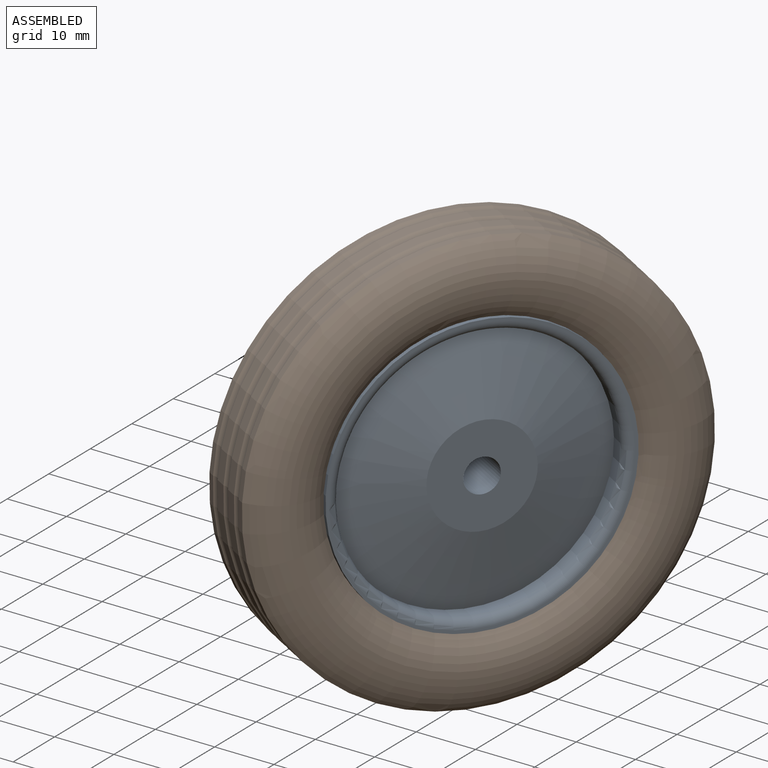
[diagram: assembled view]
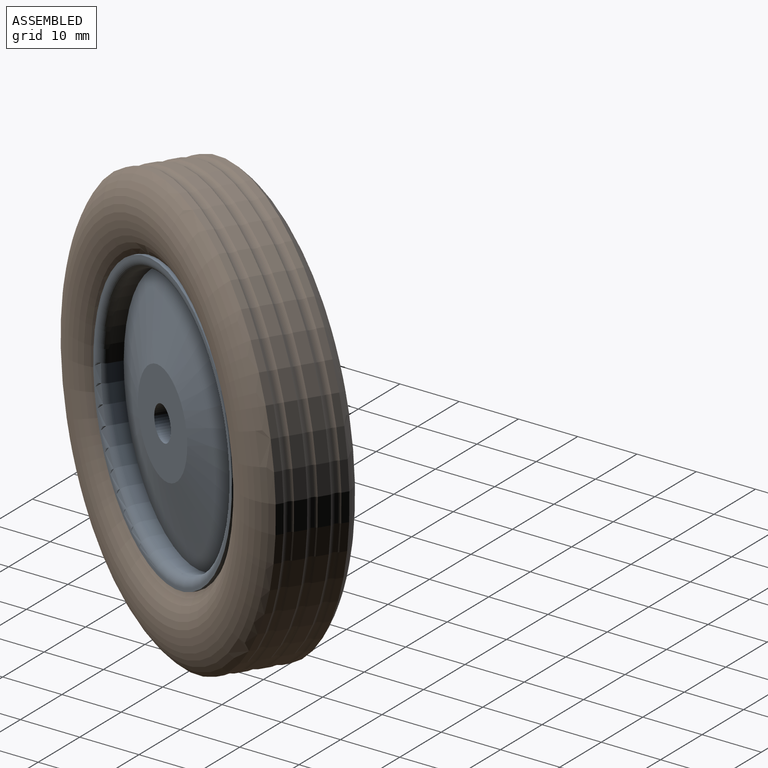
[diagram: assembled view, second angle]
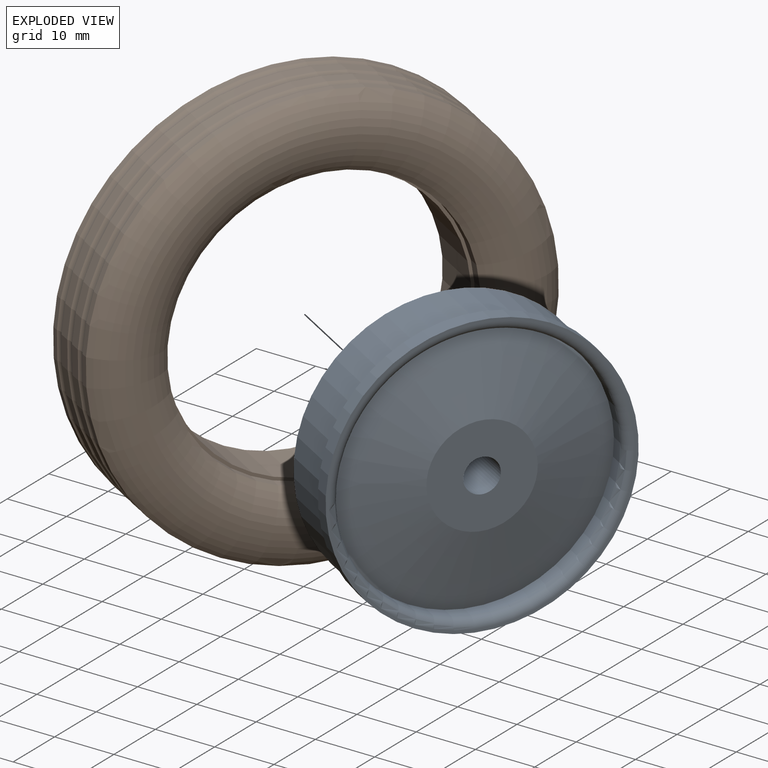
[diagram: exploded view]
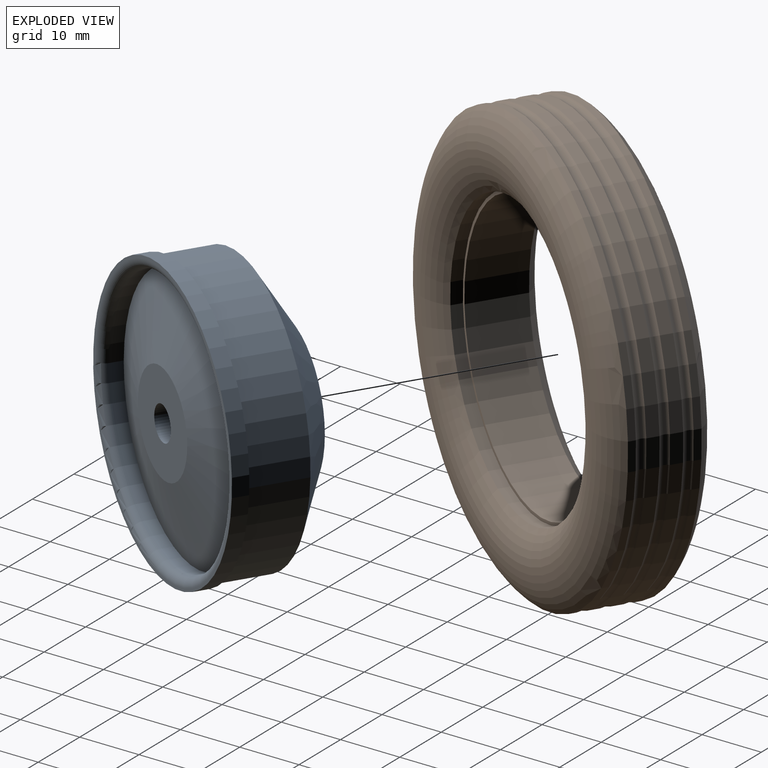
[diagram: exploded view, second angle]
ASSEMBLY  parts=2 mates=2
PART A: 11 faces, bbox 18.9x50.1x50.1 mm
  f0: plane 47.34x47.34mm, normal (1,0,0), area 77.4mm2, adj f2,f9
  f1: plane 16.83x16.83mm, normal (1,0,0), area 197.2mm2, adj f6,f8
  f2: cylinder r=23.67mm len=47.34mm, axis (1,0,0), area 391.1mm2, adj f0,f3
  f3: plane 47.34x47.34mm, normal (-1,0,0), area 77.4mm2, adj f2,f4
  f4: cylinder r=23.14mm len=46.29mm, axis (1,0,0), area 1376.8mm2, adj f3,f10
  f5: plane 25.25x25.25mm, normal (-1,0,0), area 475.3mm2, adj f6,f10
  f6: cylinder r=2.84mm len=18.94mm, axis (1,0,0), area 337.9mm2, adj f1,f5
  f7: cylinder r=21.57mm len=43.13mm, axis (1,0,0), area 285.1mm2, adj f8,f9
  f8: cone r=21.57mm half-angle=74.4deg, axis (-1,0,0), area 1286.3mm2, adj f1,f7
  f9: torus R=23.14mm, axis (1,0,0), area 344.8mm2, adj f0,f7
  f10: cone r=23.14mm half-angle=57deg, axis (1,0,0), area 1409.9mm2, adj f4,f5
PART B: 12 faces, bbox 16.8x82x82 mm
  f0: cylinder r=23.14mm len=46.29mm, axis (1,0,0), area 1421.4mm2, adj f1,f11
  f1: torus R=29.46mm, axis (-1,0,0), area 2641.9mm2, adj f0,f3
  f2: torus R=29.46mm, axis (-1,0,0), area 2530.5mm2, adj f4,f10
  f3: cylinder r=35.77mm len=71.54mm, axis (-1,0,0), area 269.9mm2, adj f1,f6
  f4: cylinder r=35.77mm len=71.54mm, axis (-1,0,0), area 269.9mm2, adj f2,f5
  f5: torus R=36.82mm, axis (1,0,0), area 378.5mm2, adj f4,f9
  f6: torus R=36.82mm, axis (1,0,0), area 378.5mm2, adj f3,f7
  f7: cylinder r=35.77mm len=71.54mm, axis (-1,0,0), area 449.2mm2, adj f6,f8
  f8: torus R=36.82mm, axis (1,0,0), area 378.5mm2, adj f7,f9
  f9: cylinder r=35.77mm len=71.54mm, axis (-1,0,0), area 449.2mm2, adj f5,f8
  f10: cylinder r=23.67mm len=47.34mm, axis (1,0,0), area 283.1mm2, adj f2,f11
  f11: plane 47.34x47.34mm, normal (1,0,0), area 77.4mm2, adj f0,f10
PLACE A rot(axis=(-0.11,0.01,-0.99),31.3deg) t=(-103.94,-4532.77,2871.32)mm
PLACE B rot(axis=(0.96,-0.27,-0.06),155deg) t=(-109.79,-4529.24,2871.26)mm
MATE planar B.f10 <-> A.f2  axis (0.86,-0.52,0.01) through (-106.19,-4531.41,2871.3)mm
MATE cylindrical A.f4 <-> B.f0  axis (0.86,-0.52,0.01) through (-110.24,-4528.97,2871.26)mm
